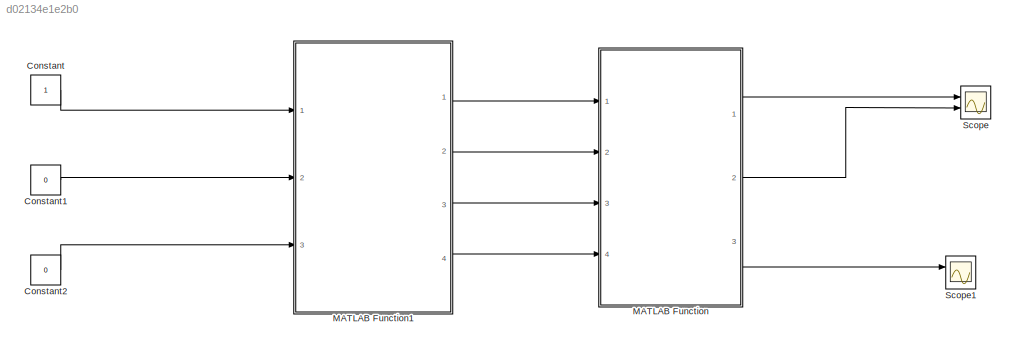
MODEL slx_d02134e1e2b0
KIND model
CONFIG AbsTol = auto
CONFIG EnableMultiTasking = off
CONFIG FixedStep = auto
CONFIG MaxStep = auto
CONFIG MinStep = auto
CONFIG RelTol = 1e-3
CONFIG SampleTimeConstraint = Unconstrained
CONFIG SolverName = VariableStepAuto
CONFIG StartTime = 0.0
CONFIG StopTime = 10.0
BLOCK [Constant] Constant
BLOCK [Constant] Constant1
  Value = 0
BLOCK [Constant] Constant2
  Value = 0
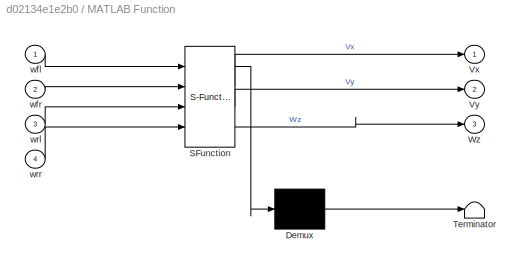
BLOCK [SubSystem] MATLAB Function
  ErrorFcn = Stateflow.Translate.translate
  PermitHierarchicalResolution = ExplicitOnly
  Ports = [4, 3]
  RequestExecContextInheritance = off
  SFBlockType = MATLAB Function
  TreatAsAtomicUnit = on
BLOCK [Demux] MATLAB Function/ Demux 
  Outputs = 1
  Ports = [1, 1]
BLOCK [S-Function] MATLAB Function/ SFunction 
  EnableBusSupport = on
  FunctionName = sf_sfun
  PortCounts = [4 4]
  Ports = [4, 4]
  SFcnIsStateOwnerBlock = off
  SFunctionDeploymentMode = off
  Tag = Stateflow S-Function 2
BLOCK [Terminator] MATLAB Function/ Terminator 
BLOCK [Outport] MATLAB Function/Vx
BLOCK [Outport] MATLAB Function/Vy
  Port = 2
BLOCK [Outport] MATLAB Function/Wz
  Port = 3
BLOCK [Inport] MATLAB Function/wfl
BLOCK [Inport] MATLAB Function/wfr
  Port = 2
BLOCK [Inport] MATLAB Function/wrl
  Port = 3
BLOCK [Inport] MATLAB Function/wrr
  Port = 4
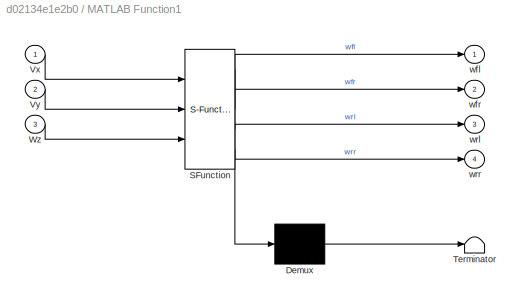
BLOCK [SubSystem] MATLAB Function1
  ErrorFcn = Stateflow.Translate.translate
  PermitHierarchicalResolution = ExplicitOnly
  Ports = [3, 4]
  RequestExecContextInheritance = off
  SFBlockType = MATLAB Function
  TreatAsAtomicUnit = on
BLOCK [Demux] MATLAB Function1/ Demux 
  Outputs = 1
  Ports = [1, 1]
BLOCK [S-Function] MATLAB Function1/ SFunction 
  EnableBusSupport = on
  FunctionName = sf_sfun
  PortCounts = [3 5]
  Ports = [3, 5]
  SFcnIsStateOwnerBlock = off
  SFunctionDeploymentMode = off
  Tag = Stateflow S-Function 1
BLOCK [Terminator] MATLAB Function1/ Terminator 
BLOCK [Inport] MATLAB Function1/Vx
BLOCK [Inport] MATLAB Function1/Vy
  Port = 2
BLOCK [Inport] MATLAB Function1/Wz
  Port = 3
BLOCK [Outport] MATLAB Function1/wfl
BLOCK [Outport] MATLAB Function1/wfr
  Port = 2
BLOCK [Outport] MATLAB Function1/wrl
  Port = 3
BLOCK [Outport] MATLAB Function1/wrr
  Port = 4
BLOCK [Scope] Scope
  Floating = off
  NumInputPorts = 2
  Ports = [2]
  ScopeSpecificationString = Simulink.scopes.TimeScopeBlockCfg('CurrentConfiguration', extmgr.ConfigurationSet(extmgr.Configuration('Core','General UI',true),extmgr.Configuration('Core','Source UI',true),extmgr.Configuration('Sources','WiredSimulink',true),extmgr.Configuration('Visuals','Time Domain',true,'SerializedDisplays',{struct('MinYLimReal','-0.125','MaxYLimReal','1.125','YLabelReal','','MinYLimMag','0.00000','MaxYLimM...<+1372ch>
BLOCK [Scope] Scope1
  Floating = off
  NumInputPorts = 2
  Ports = [2]
  ScopeSpecificationString = Simulink.scopes.TimeScopeBlockCfg('CurrentConfiguration', extmgr.ConfigurationSet(extmgr.Configuration('Core','General UI',true),extmgr.Configuration('Core','Source UI',true),extmgr.Configuration('Sources','WiredSimulink',true,'DataLoggingVariableName','ScopeData1'),extmgr.Configuration('Visuals','Time Domain',true,'SerializedDisplays',{struct('MinYLimReal','-1.00000','MaxYLimReal','1.00000','YLab...<+1389ch>
LINE Constant1:1 -> MATLAB Function1:2
LINE Constant2:1 -> MATLAB Function1:3
LINE Constant:1 -> MATLAB Function1:1
LINE MATLAB Function1:1 -> MATLAB Function:1
LINE MATLAB Function1:2 -> MATLAB Function:2
LINE MATLAB Function1:3 -> MATLAB Function:3
LINE MATLAB Function1:4 -> MATLAB Function:4
LINE MATLAB Function:1 -> Scope:1
LINE MATLAB Function:2 -> Scope:2
LINE MATLAB Function:3 -> Scope1:1
CHART MATLAB Function1 states=1 transitions=1
  STATE_LABEL 'eML_blk_kernel()'
  STATE_LABEL 'SCRIPT:\nfunction [wfl,wfr,wrl,wrr] =  w_IK(Vx,Vy,Wz)\n\nr = 1;\nlx = 1;\nly = 1;\n%---------------------\nJ = [1 -1 -(lx+ly);\n    1 1 (lx+ly);\n    1 1 -(lx+ly);\n    1 -1 (lx+ly)]\nW = (1/r)*J*[Vx;Vy;Wz];\n\nwfl = W(1);\nwfr = W(2);\nwrl = W(3);\nwrr = W(4);\n\n'
CHART MATLAB Function states=1 transitions=1
  STATE_LABEL 'eML_blk_kernel()'
  STATE_LABEL 'SCRIPT:\n\nfunction [Vx,Vy,Wz] = odom_4w(wfl,wfr,wrl,wrr)\n%-------------------\nr = 1;\nlx = 1;\nly = 1;\n%---------------------\nV = (r/4)*[1 1 1 1;\n          -1 1 1 -1;\n          -(1/(lx+ly)) (1/(lx+ly)) -(1/(lx+ly)) (1/(lx+ly))]*[wfl;wfr;wrl;wrr];\nVx = V(1);\nVy = V(2);\nWz = V(3);\nend\n'
CHART  states=0 transitions=0
CHART  states=0 transitions=0
